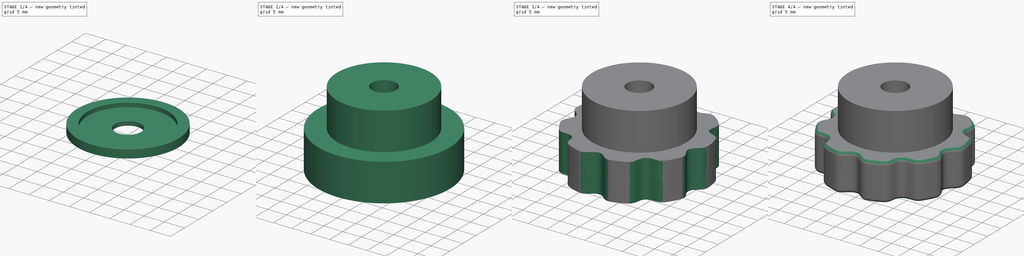
[diagram: build sequence overview — one tinted view per stage of 4, left to right]
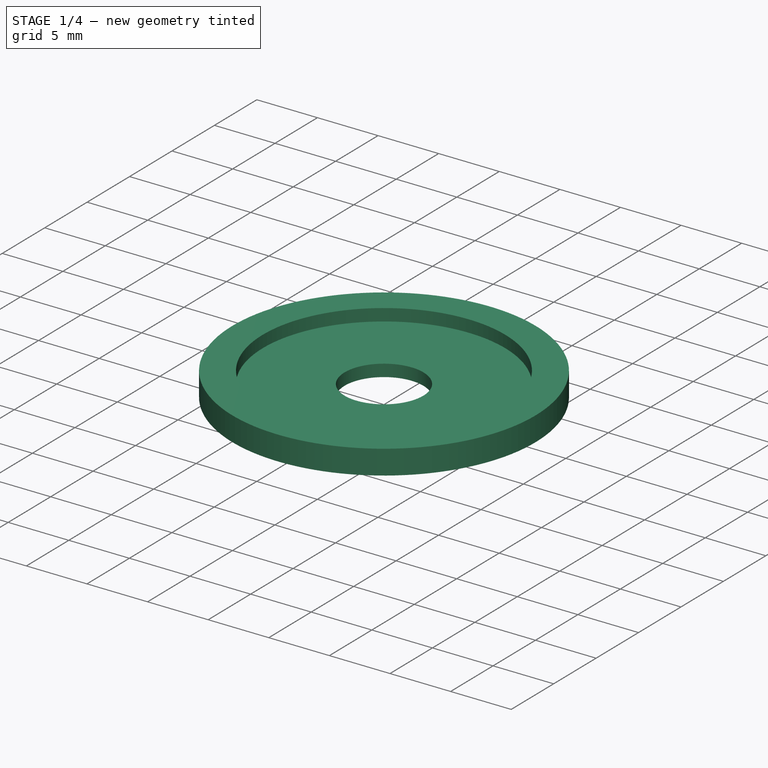
[diagram: stage 1 of 4 — iso view after this stage's code; geometry added in this stage tinted green]
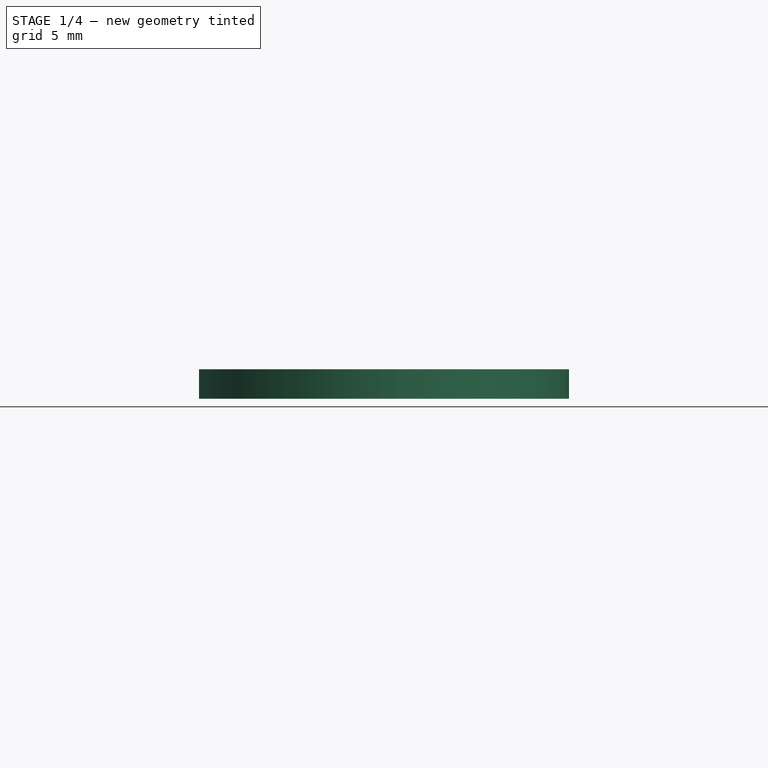
[diagram: stage 1 of 4 — front view after this stage's code; geometry added in this stage tinted green]
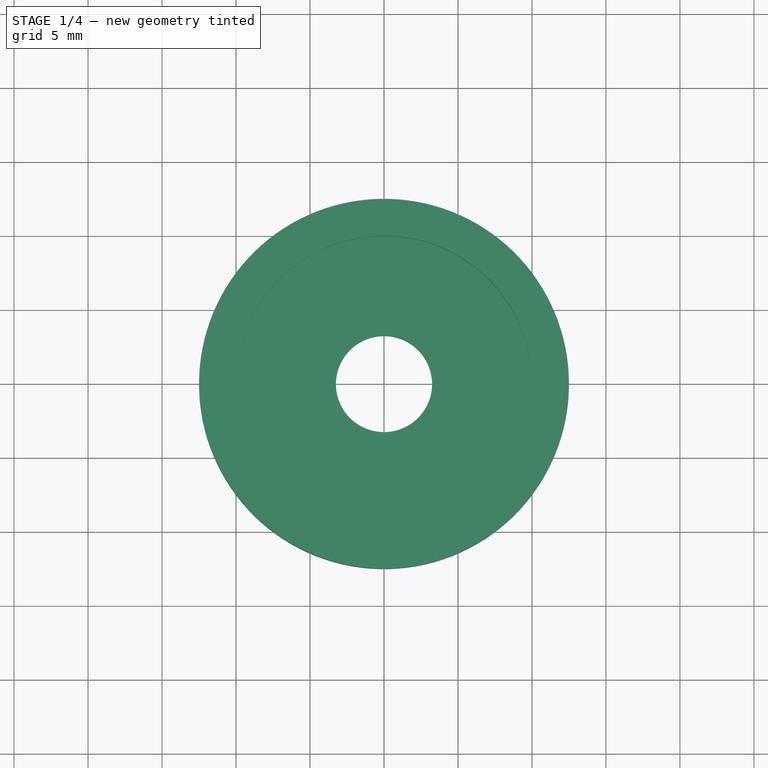
[diagram: stage 1 of 4 — top view after this stage's code; geometry added in this stage tinted green]
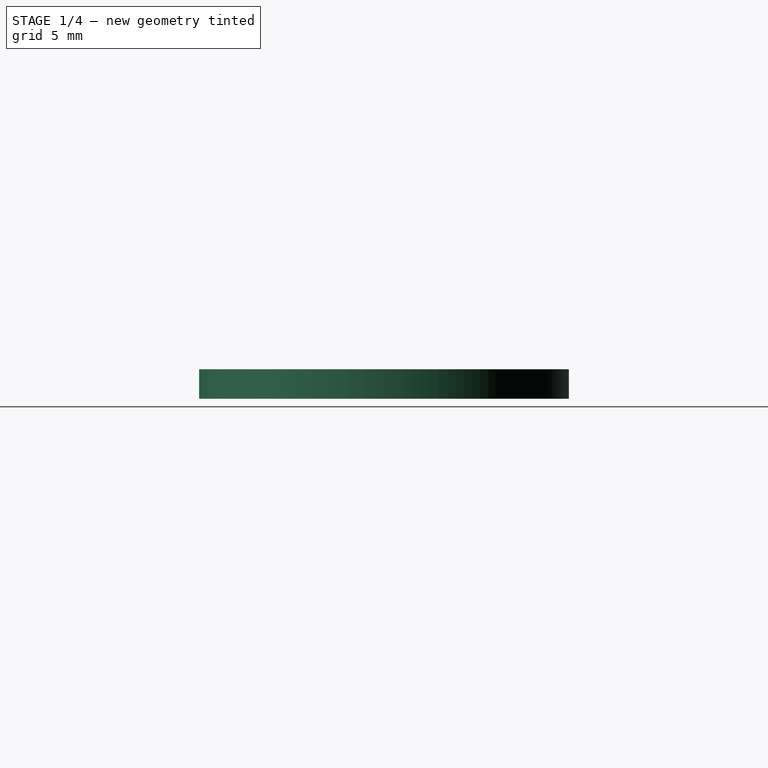
[diagram: stage 1 of 4 — right view after this stage's code; geometry added in this stage tinted green]
FCSTD DOCUMENT  (FreeCAD 0.20R27319 (Git))
Label: BasicStopNut
License: All rights reserved
LicenseURL: http://en.wikipedia.org/wiki/All_rights_reserved
objects: Sketcher::SketchObject×7, PartDesign::Pad×4, PartDesign::Pocket×3, PartDesign::Fillet×2, PartDesign::Body×2, PartDesign::PolarPattern×1
note: 28 computed .brp shape members not serialized (recipe doc carries the construction recipe); baked Part::Feature solids carry a one-line shape summary decoded from their .brp
EXTERNAL_REF file=SharedDimensions.FCStd obj=Spreadsheet

FEATURE [PartDesign::Body] Body
  Group = -> [Sketch,Pad,Sketch003,Pad001,Pocket001,Sketch005,Sketch006,Pocket,Sketch007,Pocket002,PolarPattern,Fillet,Fillet001]
  Origin = -> Origin
  Tip = -> Fillet001
FEATURE [Sketcher::SketchObject] Sketch008
  FullyConstrained = true
  MapMode = 5
  Support = -> [XY_Plane001]
  expr: Constraints[2] = SharedDimensions#Spreadsheet.HoleDiameter + 5
  expr: Constraints[3] = SharedDimensions#Spreadsheet.BoltDiameter + SharedDimensions#Spreadsheet.BoltClearance
  sketch-geometry (2):
    g0: Circle CenterX=0 CenterY=0 CenterZ=0 NormalX=0 NormalY=0 NormalZ=1 AngleXU=0 Radius=12.5
    g1: Circle CenterX=0 CenterY=0 CenterZ=0 NormalX=0 NormalY=0 NormalZ=1 AngleXU=0 Radius=3.25
  constraints (4):
    c: Coincident(g0,g-1)
    c: Coincident(g1,g0)
    c: Diameter(g0) = 25
    c: Diameter(g1) = 6.5
FEATURE [PartDesign::Pad] Pad002
  Direction = (0,0,1)
  Length = 1
  Length2 = 10
  Profile = -> Sketch008
  ReferenceAxis = -> Sketch008 [N_Axis]
  Type = 0
FEATURE [Sketcher::SketchObject] Sketch009
  ExternalGeometry = -> [Pad002]
  FullyConstrained = false
  MapMode = 5
  Support = -> [XY_Plane001]
  expr: Constraints[2] = SharedDimensions#Spreadsheet.HoleDiameter
  sketch-geometry (2):
    g0: Circle CenterX=0 CenterY=0 CenterZ=0 NormalX=0 NormalY=0 NormalZ=1 AngleXU=0 Radius=12.5
    g1: Circle CenterX=0 CenterY=0 CenterZ=0 NormalX=0 NormalY=0 NormalZ=1 AngleXU=0 Radius=10
  constraints (3):
    c: Equal(g0,g-3)
    c: Coincident(g1,g0)
    c: Diameter(g1) = 20
FEATURE [PartDesign::Pad] Pad003
  BaseFeature = -> Pad002
  Direction = (0,0,1)
  Length = 2
  Length2 = 10
  Profile = -> Sketch009
  ReferenceAxis = -> Sketch009 [N_Axis]
  Type = 0
FEATURE [PartDesign::Body] Body001
  Group = -> [Sketch008,Pad002,Sketch009,Pad003]
  Origin = -> Origin001
  Tip = -> Pad003
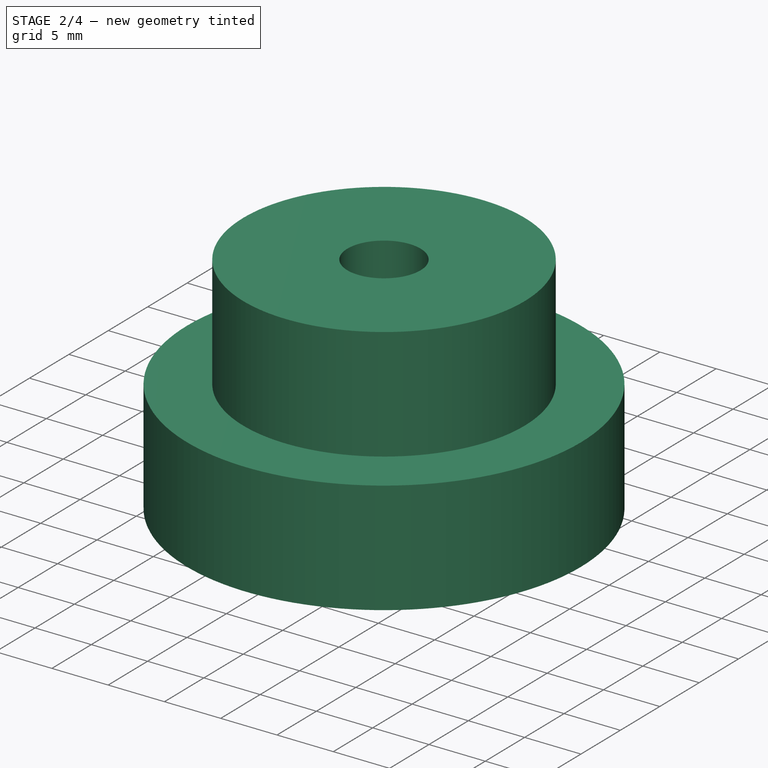
[diagram: stage 2 of 4 — iso view after this stage's code; geometry added in this stage tinted green]
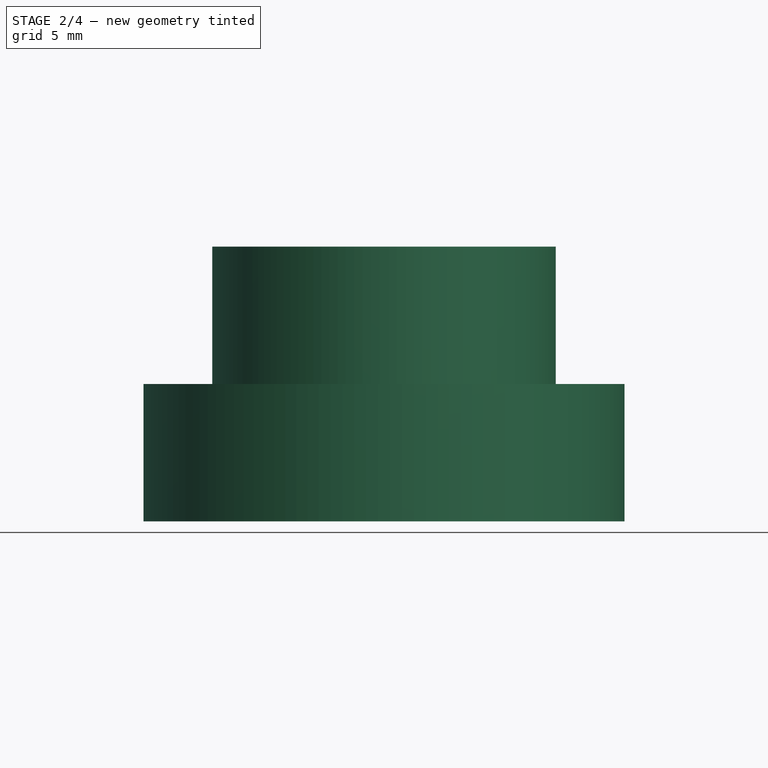
[diagram: stage 2 of 4 — front view after this stage's code; geometry added in this stage tinted green]
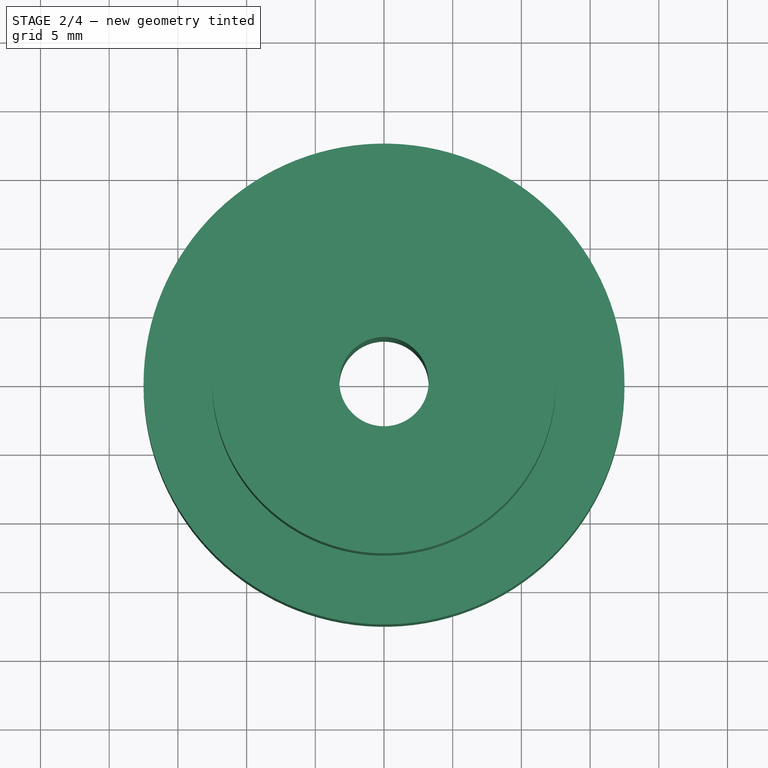
[diagram: stage 2 of 4 — top view after this stage's code; geometry added in this stage tinted green]
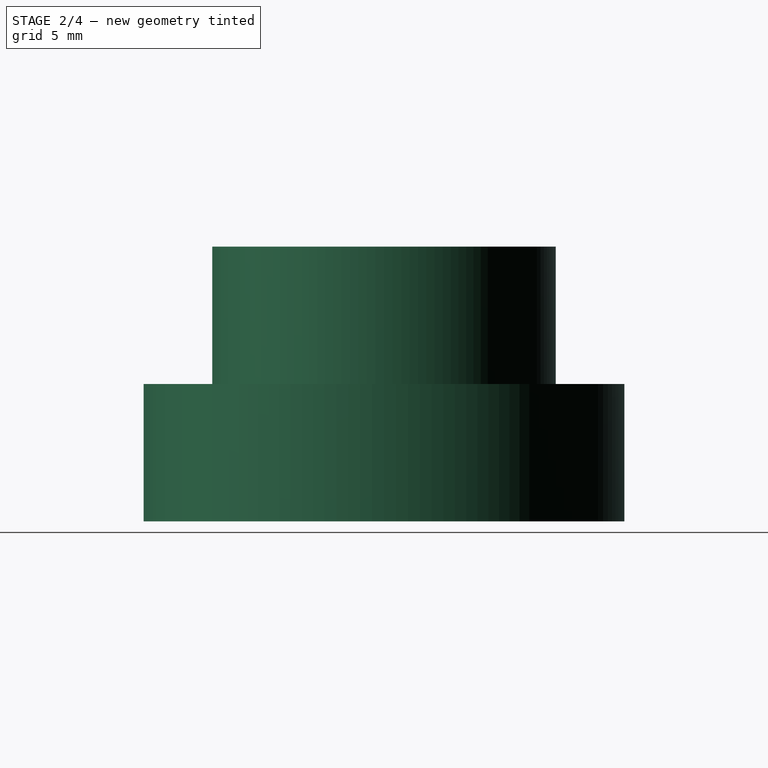
[diagram: stage 2 of 4 — right view after this stage's code; geometry added in this stage tinted green]
FEATURE [Sketcher::SketchObject] Sketch
  FullyConstrained = true
  MapMode = 5
  Support = -> [XY_Plane]
  expr: Constraints[1] = 35mm
  sketch-geometry (1):
    g0: Circle CenterX=0 CenterY=0 CenterZ=0 NormalX=0 NormalY=0 NormalZ=1 AngleXU=0 Radius=17.5
  constraints (2):
    c: Coincident(g0,g-1)
    c: Diameter(g0) = 35
FEATURE [PartDesign::Pad] Pad  label="Finger Ring"
  Direction = (0,0,1)
  Length = 10
  Length2 = 10
  Profile = -> Sketch
  ReferenceAxis = -> Sketch [N_Axis]
  Type = 0
FEATURE [Sketcher::SketchObject] Sketch003
  FullyConstrained = true
  MapMode = 5
  Support = -> [XY_Plane]
  expr: Constraints[1] = SharedDimensions#Spreadsheet.BoltDiameter + SharedDimensions#Spreadsheet.BoltClearance
  sketch-geometry (1):
    g0: Circle CenterX=0 CenterY=0 CenterZ=0 NormalX=0 NormalY=0 NormalZ=1 AngleXU=0 Radius=3.25
  constraints (2):
    c: Coincident(g0,g-1)
    c: Diameter(g0) = 6.5
FEATURE [Sketcher::SketchObject] Sketch005
  FullyConstrained = true
  MapMode = 5
  Placement = pos=(0,0,10) rot=(0,0,1;0rad)
  Support = -> [Pad]
  expr: Constraints[0] = SharedDimensions#Spreadsheet.HoleDiameter + 5
  sketch-geometry (1):
    g0: Circle CenterX=0 CenterY=0 CenterZ=0 NormalX=0 NormalY=0 NormalZ=1 AngleXU=0 Radius=12.5
  constraints (2):
    c: Diameter(g0) = 25
    c: Coincident(g0,g-1)
FEATURE [PartDesign::Pad] Pad001  label="Spacer"
  BaseFeature = -> Pad
  Direction = (0,0,1)
  Length = 10
  Length2 = 10
  Profile = -> Sketch005
  ReferenceAxis = -> Sketch005 [N_Axis]
  Type = 0
FEATURE [PartDesign::Pocket] Pocket001  label="Bolt hole"
  BaseFeature = -> Pad001
  Direction = (0,0,-1)
  Length = 5
  Length2 = 5
  Profile = -> Sketch003
  ReferenceAxis = -> Sketch003 [N_Axis]
  Reversed = true
  Type = 1
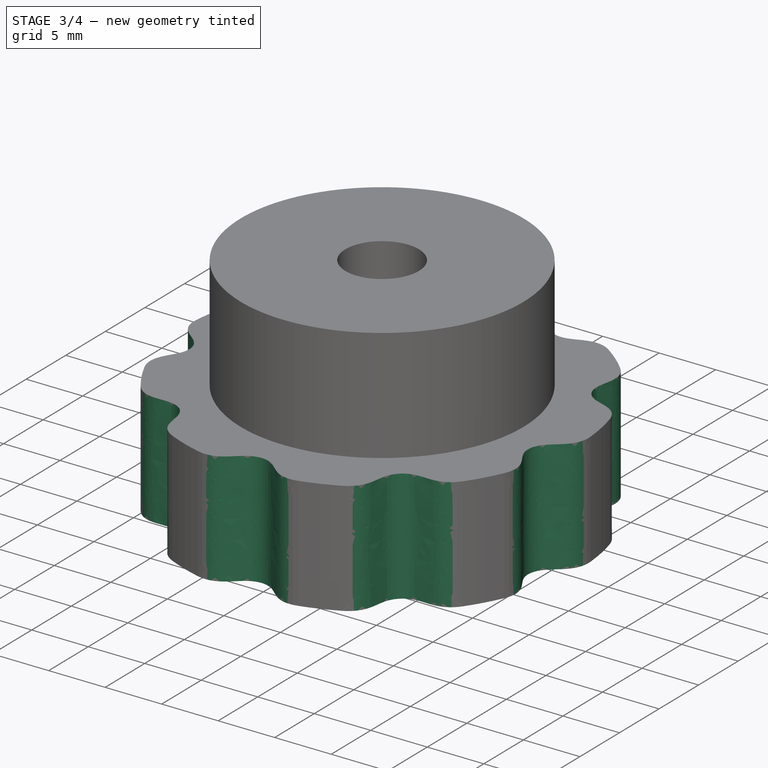
[diagram: stage 3 of 4 — iso view after this stage's code; geometry added in this stage tinted green]
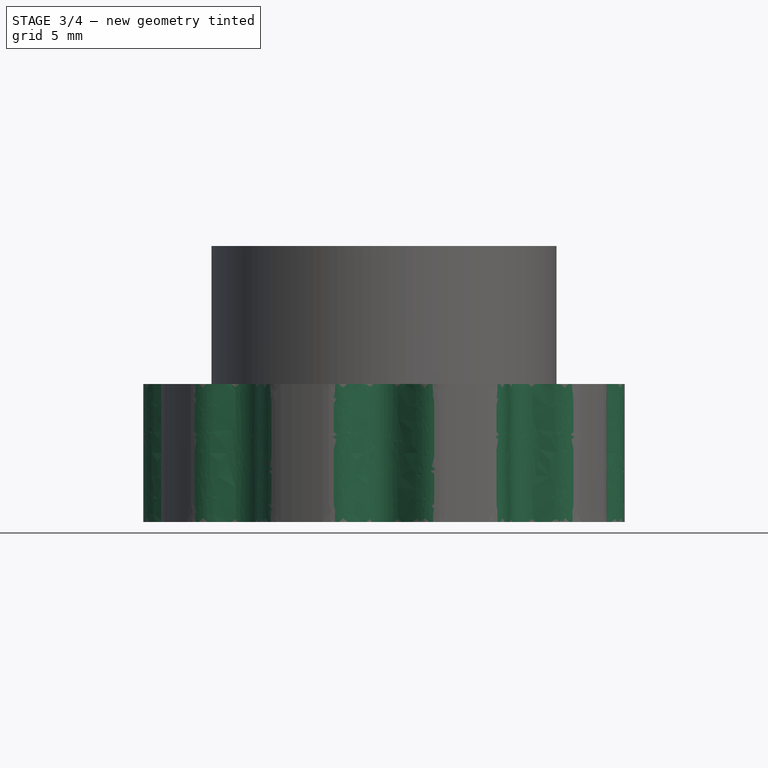
[diagram: stage 3 of 4 — front view after this stage's code; geometry added in this stage tinted green]
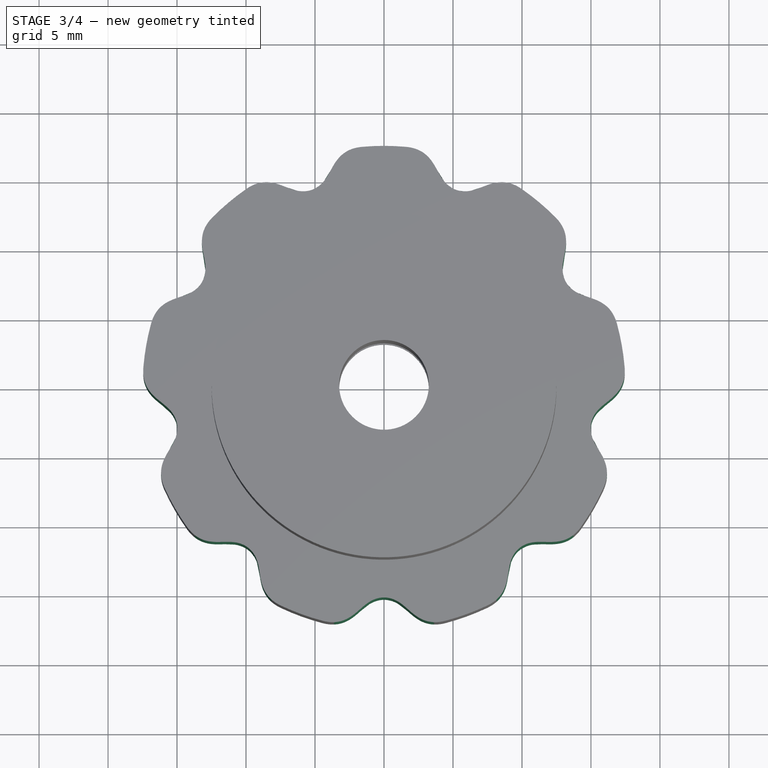
[diagram: stage 3 of 4 — top view after this stage's code; geometry added in this stage tinted green]
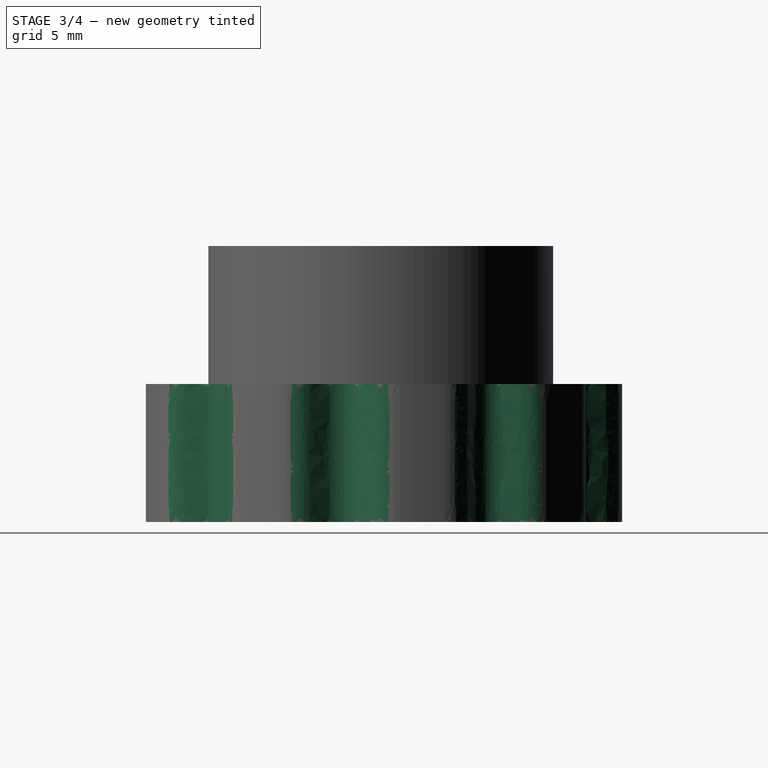
[diagram: stage 3 of 4 — right view after this stage's code; geometry added in this stage tinted green]
FEATURE [Sketcher::SketchObject] Sketch006
  FullyConstrained = true
  MapMode = 5
  Placement = pos=(0,0,0) rot=(1,0,0;3.14159rad)
  Support = -> [Pocket001]
  expr: Constraints[19] = SharedDimensions#Spreadsheet.NutDiameter + SharedDimensions#Spreadsheet.NutClearance
  sketch-geometry (7):
    g0: LineSegment StartX=6.58179 StartY=-9e-16 StartZ=0 EndX=3.2909 EndY=5.7 EndZ=0
    g1: LineSegment StartX=3.2909 StartY=5.7 StartZ=0 EndX=-3.2909 EndY=5.7 EndZ=0
    g2: LineSegment StartX=-3.2909 StartY=5.7 StartZ=0 EndX=-6.58179 EndY=0 EndZ=0
    g3: LineSegment StartX=-6.58179 StartY=0 StartZ=0 EndX=-3.2909 EndY=-5.7 EndZ=0
    g4: LineSegment StartX=-3.2909 StartY=-5.7 StartZ=0 EndX=3.2909 EndY=-5.7 EndZ=0
    g5: LineSegment StartX=3.2909 StartY=-5.7 StartZ=0 EndX=6.58179 EndY=-9e-16 EndZ=0
    g6: Circle CenterX=0 CenterY=0 CenterZ=0 NormalX=0 NormalY=0 NormalZ=1 AngleXU=0 Radius=6.58179
  constraints (16):
    c: Coincident(g0,g1)
    c: Coincident(g1,g2)
    c: Coincident(g2,g3)
    c: Coincident(g3,g4)
    c: Coincident(g4,g5)
    c: Coincident(g5,g0)
    c: Equal(g0, g1-g5) x5
    c: PointOnObject(g0,g6)
    c: PointOnObject(g1,g6)
    c: PointOnObject(g2,g6)
    c: PointOnObject(g3,g6)
    c: PointOnObject(g4,g6)
    c: PointOnObject(g5,g6)
    c: Coincident(g6,g-1)
    c: Horizontal(g1)
    c: DistanceY(g4,g0) = 11.4
FEATURE [PartDesign::Pocket] Pocket  label="Nut Recess"
  BaseFeature = -> Pocket001
  Direction = (0,0,1)
  Length = 6
  Length2 = 5
  Profile = -> Sketch006
  ReferenceAxis = -> Sketch006 [N_Axis]
  Type = 0
  expr: Length = SharedDimensions#Spreadsheet.NutHeight + 1
FEATURE [Sketcher::SketchObject] Sketch007
  ExternalGeometry = -> [Pocket]
  FullyConstrained = false
  MapMode = 5
  Placement = pos=(0,0,0) rot=(1,0,0;3.14159rad)
  Support = -> [Pocket]
  sketch-geometry (13):
    g0-g5: Circle x6 (B-spline internal-alignment scaffolding for g6; pole/knot coordinates omitted)
    g6: BSplineCurve PolesCount=6 KnotsCount=4 Degree=3 IsPeriodic=0
    g7-g10: GeomPoint x4 (B-spline internal-alignment scaffolding for g6; pole/knot coordinates omitted)
    g11: ArcOfCircle CenterX=1.8e-15 CenterY=11.5071 CenterZ=0 NormalX=0 NormalY=0 NormalZ=1 AngleXU=0 Radius=7.04544 StartAngle=0.872552 EndAngle=2.26904
    g12: LineSegment StartX=0 StartY=0 StartZ=0 EndX=4.52933 EndY=16.9037 EndZ=0
  constraints (13):
    c: Weight(g0) = 1
    c: Equal(g0, g1-g5) x5
    c: InternalAlignment(g0-g5 -> g6) x6
    c: InternalAlignment(g7-g10 -> g6) x4
    c: Symmetric(g2,g3,g-2)
    c: Symmetric(g1,g4,g-2)
    c: Symmetric(g6,g6,g-2)
    c: PointOnObject(g6,g-3)
    c: Coincident(g11,g6)
    c: Coincident(g11,g6)
    c: Coincident(g12,g-3)
    c: Coincident(g12,g6)
    c: Angle(g12,g-2) = 0.261799
FEATURE [PartDesign::Pocket] Pocket002  label="Grip"
  BaseFeature = -> Pocket
  Direction = (0,0,1)
  Length = 5
  Length2 = 5
  Profile = -> Sketch007
  ReferenceAxis = -> Sketch007 [N_Axis]
  Type = 1
FEATURE [PartDesign::PolarPattern] PolarPattern
  Angle = 360
  Axis = -> Sketch007 [N_Axis]
  BaseFeature = -> Pocket002
  Occurrences = 9
  Originals = -> [Pocket002]
  Overlap = 0
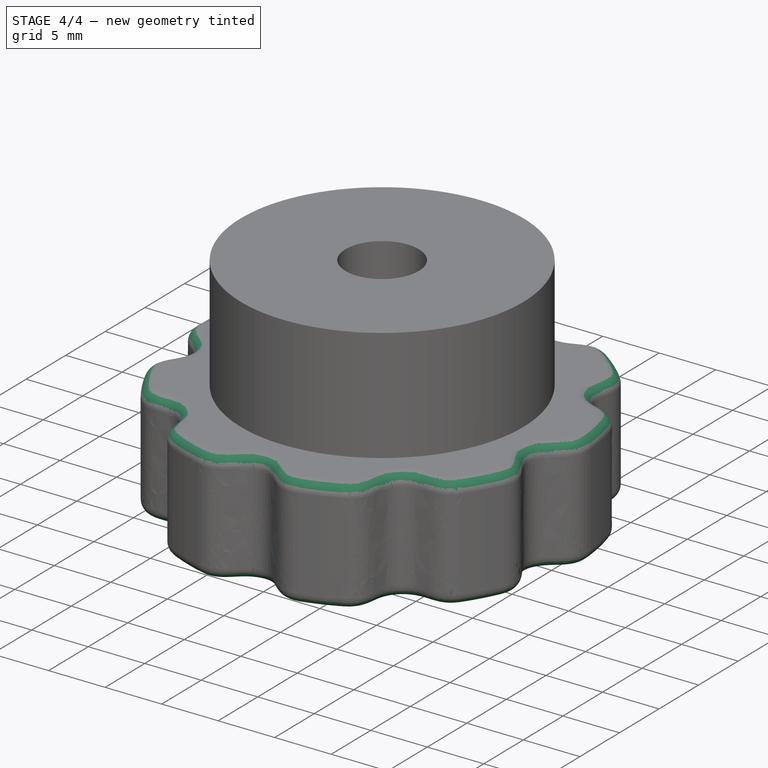
[diagram: stage 4 of 4 — iso view after this stage's code; geometry added in this stage tinted green]
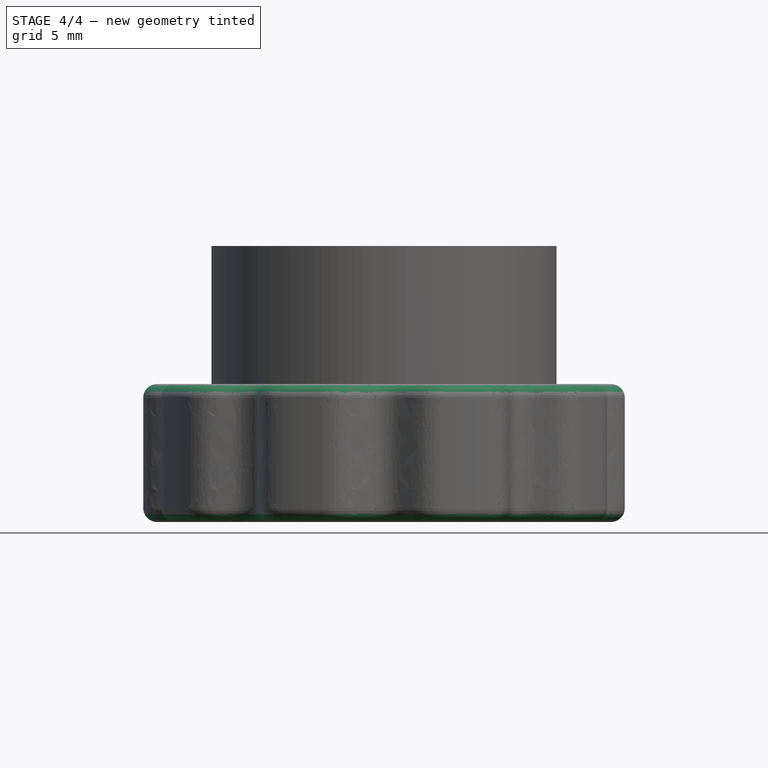
[diagram: stage 4 of 4 — front view after this stage's code; geometry added in this stage tinted green]
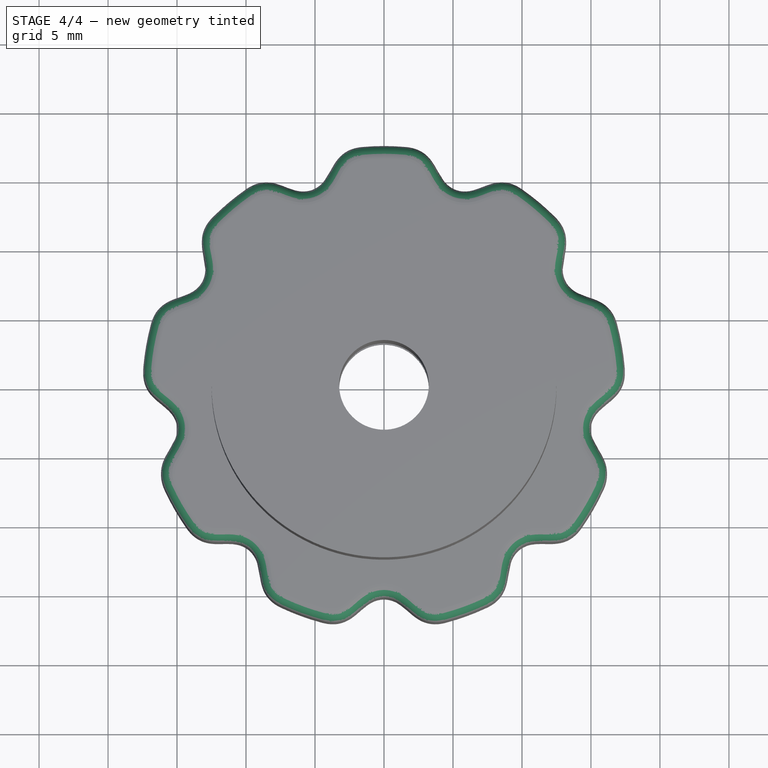
[diagram: stage 4 of 4 — top view after this stage's code; geometry added in this stage tinted green]
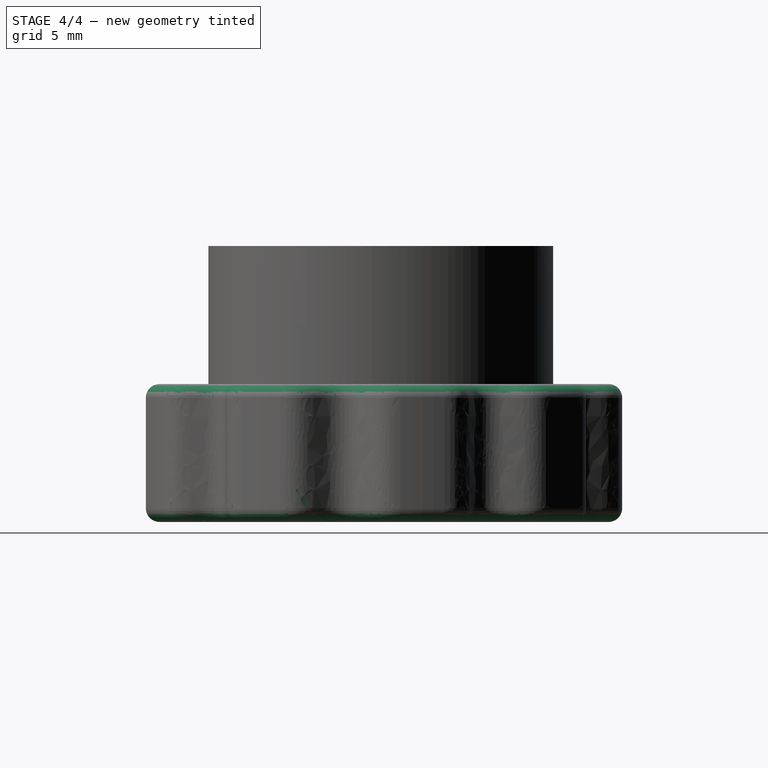
[diagram: stage 4 of 4 — right view after this stage's code; geometry added in this stage tinted green]
FEATURE [PartDesign::Fillet] Fillet
  Base = -> PolarPattern [Edge77,Edge46,Edge75,Edge43,Edge73,Edge5,Edge70,Edge68,Edge66,Edge64,Edge62,Edge60,Edge58,Edge56,Edge54,Edge52,Edge50,Edge48]
  BaseFeature = -> PolarPattern
  Radius = 1
  SupportTransform = false
FEATURE [PartDesign::Fillet] Fillet001
  Base = -> Fillet [Edge30,Edge28,Edge32,Edge34,Edge36,Edge7,Edge38,Edge40,Edge42,Edge44,Edge12,Edge14,Edge16,Edge18,Edge20,Edge22,Edge24,Edge26]
  BaseFeature = -> Fillet
  Radius = 1
  SupportTransform = false
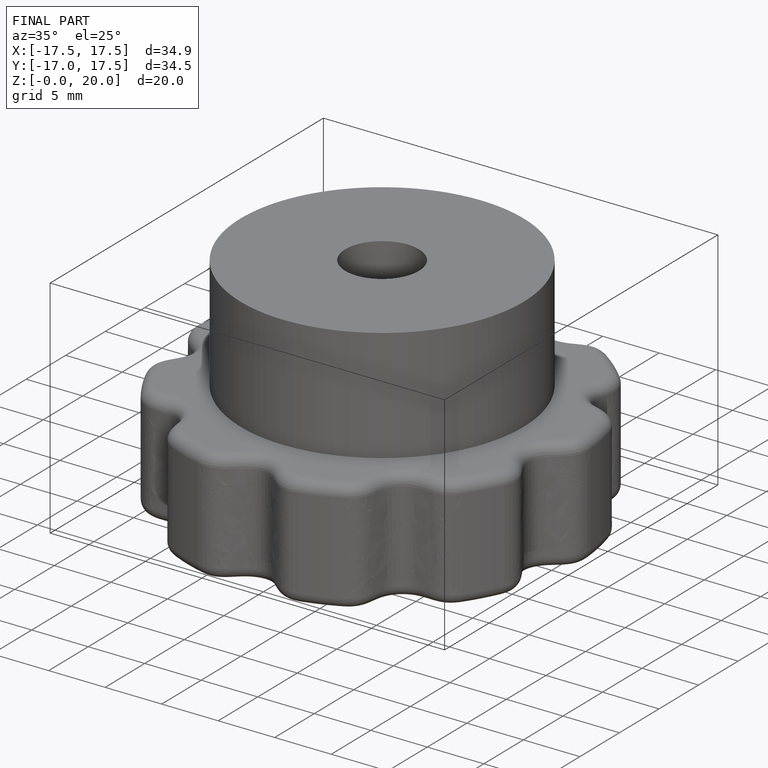
[diagram: finished part — iso view with bounding-box wireframe]
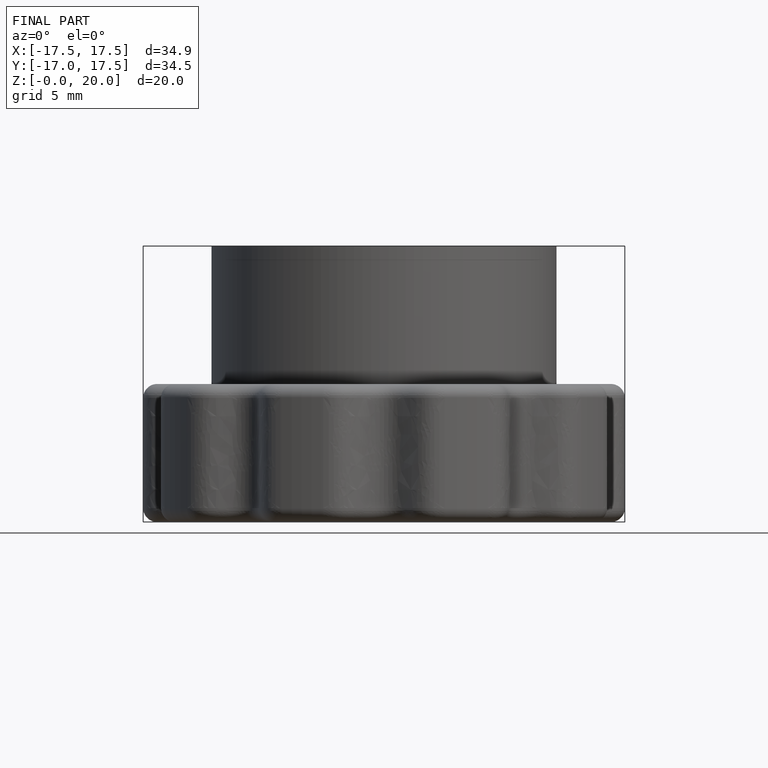
[diagram: finished part — front view with bounding-box wireframe]
